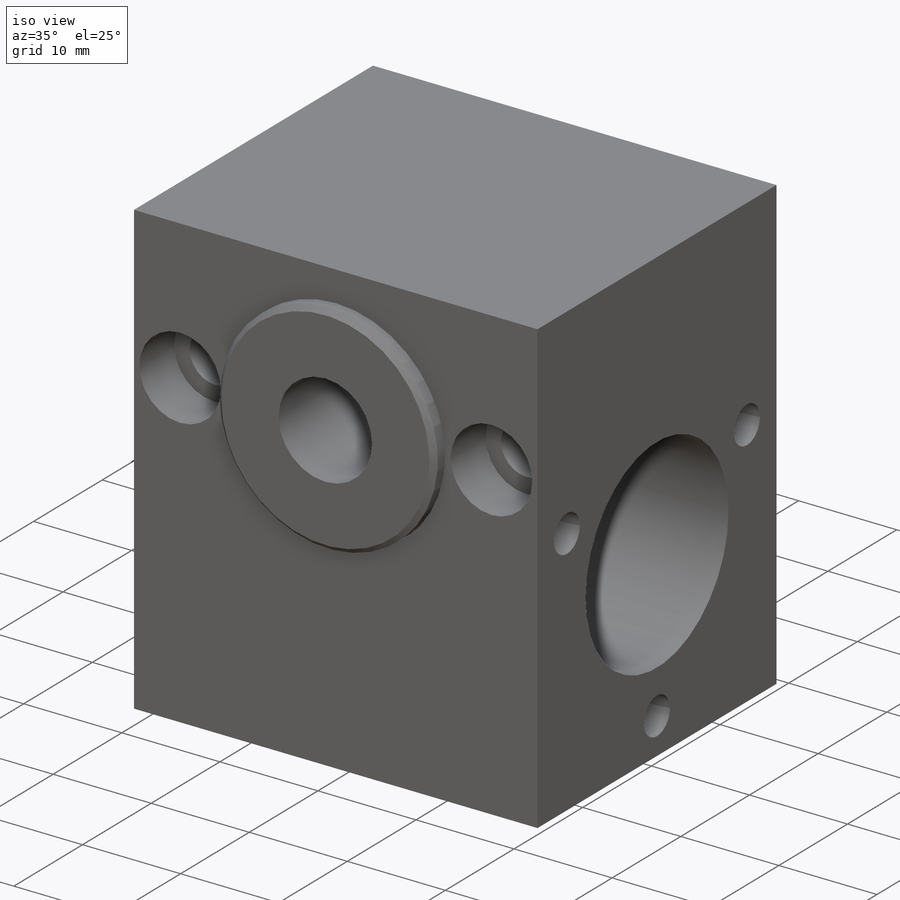
[diagram: iso view]
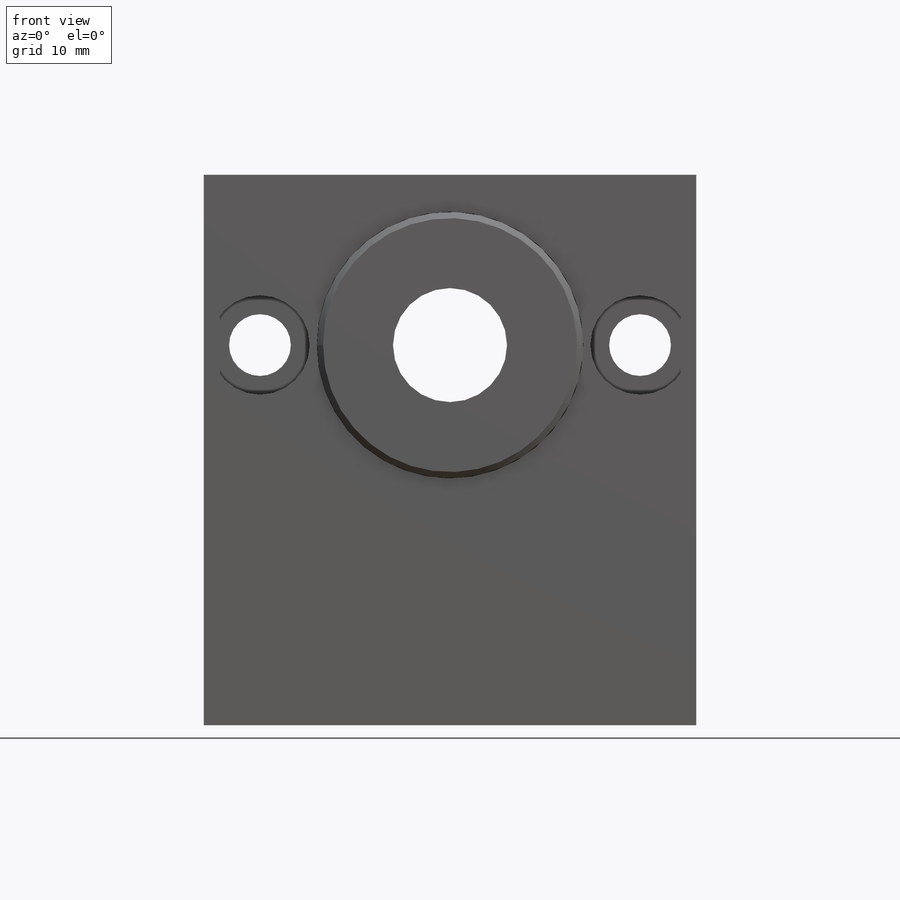
[diagram: front view]
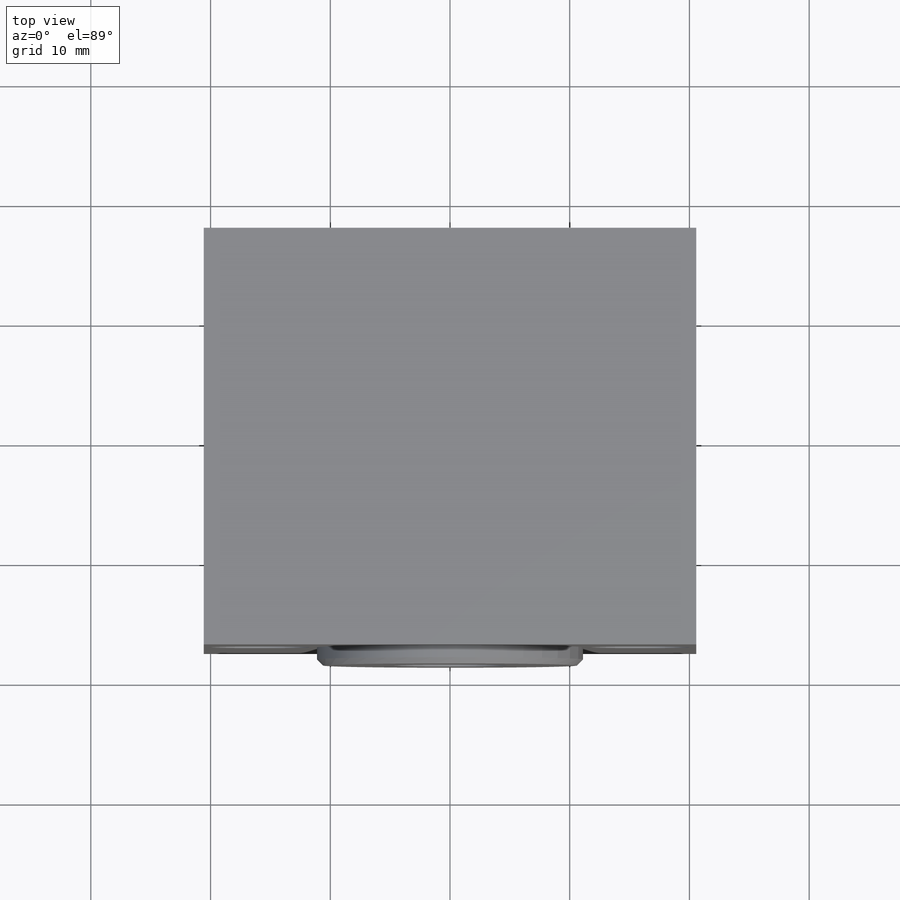
[diagram: top view]
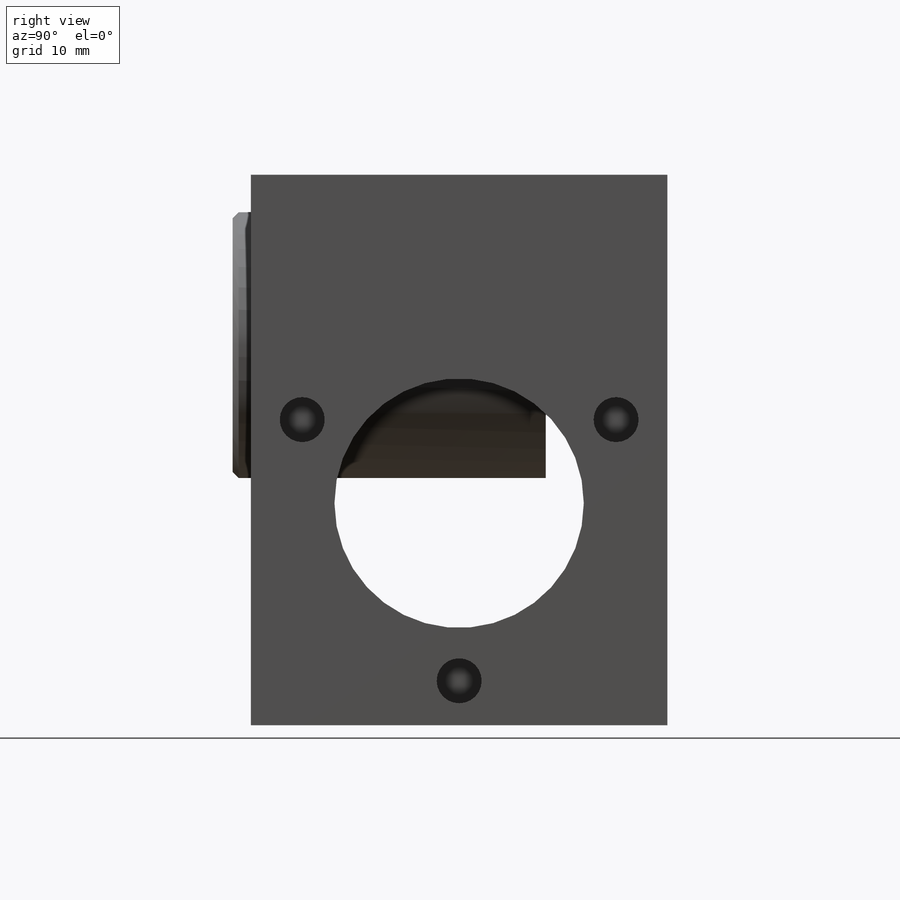
[diagram: right view]
SOLIDWORKS PART (.sldprt)
format: sldprt  version: not decoded by parser v0  size: 744,960 bytes
history: native  units: mm
features: plane x150, sketch x61, hole x5, cut_revolve x2, thread x2, pattern_linear x2, material x1, extrude x1, revolve x1 (+14 scaffold rows collapsed; 1 parser-record rows omitted)
feature tree (240):
  scaffold x14  (default folders/planes/origin — collapsed)
  material  "6061-T6 (SS)"
  sketch  "Sketch1"
  extrude  "Boss-Extrude1"  Depth=20.574mm
  plane  "Plane1"  Offset=15.875mm
  sketch  "Sketch2"
  cut_revolve  "Cut-Revolve1"  Angle=360deg
  plane  "Plane2"  Offset=15.875mm
  sketch  "Sketch3"
  cut_revolve  "Cut-Revolve2"  Angle=360deg
  plane  "Plane3"  Offset=12.7mm
  hole  "Hole1"  Diameter=3.96748mm Depth=11.5824mm
  sketch  "Sketch5"
  sketch  "Sketch4"  dims[Diameter=~3.96748mm Depth=11.5824mm C-Sink Diameter=4.826mm C-Sink Angle=90.0deg Drill Angle=120.0deg]
  thread  "Cosmetic Thread1"  Diameter=9.652mm  [1 undecoded]
  plane  "Plane4"  Offset=12.7mm
  hole  "Hole2"  Diameter=3.96748mm Depth=11.5824mm
  sketch  "Sketch7"
  sketch  "Sketch6"  dims[Diameter=~3.96748mm Depth=11.5824mm C-Sink Diameter=4.826mm C-Sink Angle=90.0deg Drill Angle=120.0deg]
  thread  "Cosmetic Thread2"  Diameter=9.652mm  [1 undecoded]
  hole  "Hole3"  Diameter=9.525mm Depth=34.798mm
  sketch  "Sketch9"
  sketch  "Sketch8"  dims[Diameter=9.525mm Depth=34.798mm C-Bore Diameter=22.2758mm C-Bore Depth=24.638mm]
  plane  "Plane5"  Offset=20.574mm
  plane  "Plane6"  Offset=20.574mm
  plane  "Plane7"  Offset=18.923mm
  plane  "Plane8"  Offset=44.323mm
  plane  "Plane9"  Offset=44.323mm
  plane  "Plane10"  Offset=17.399mm
  plane  "Plane11"  Offset=18.923mm
  plane  "Plane12"  Offset=17.399mm
  sketch  "Sketch10"
  revolve  "Revolve1"  Angle=360deg
  plane  "Plane13"  Offset=20.574mm
  hole  "Hole4"  Diameter=3.7592mm Depth=7.5184mm
  sketch  "Sketch12"
  sketch  "Sketch11"  dims[Diameter=3.7592mm Depth=7.5184mm]
  sketch  "Sketch13"
  pattern_linear  "LPattern2"  Count1=2 Count2=2 Spacing1=26.21701mm Spacing2=25.451526mm
  plane  "Plane14"  Offset=20.574mm
  hole  "Hole5"  Diameter=3.7592mm Depth=7.5184mm
  sketch  "Sketch15"
  sketch  "Sketch14"  dims[Diameter=3.7592mm Depth=7.5184mm]
  sketch  "Sketch16"
  pattern_linear  "LPattern4"  Count1=2 Count2=2 Spacing1=26.21701mm Spacing2=25.451526mm
  plane  "Plane15"  Offset=31.75mm
  parser-record x1  (decoder bookkeeping rows leaked as tree rows — omitted from the tree; the rows remain in map.json)
  plane  "a1 XY"
  plane  "a1 XZ"
  plane  "a1 YZ"
  sketch  "a1"
  plane  "a2 XY"
  plane  "a2 XZ"
  plane  "a2 YZ"
  sketch  "a2"
  plane  "ab XY"
  plane  "ab XZ"
  plane  "ab YZ"
  sketch  "ab"
  plane  "b1 XY"
  plane  "b1 XZ"
  plane  "b1 YZ"
  sketch  "b1"
  plane  "b2 XY"
  plane  "b2 XZ"
  plane  "b2 YZ"
  sketch  "b2"
  plane  "body a single XY"
  plane  "body a single XZ"
  plane  "body a single YZ"
  sketch  "body a single"
  plane  "body b single XY"
  plane  "body b single XZ"
  plane  "body b single YZ"
  sketch  "body b single"
  plane  "c1 XY"
  plane  "c1 XZ"
  plane  "c1 YZ"
  sketch  "c1"
  plane  "c2 XY"
  plane  "c2 XZ"
  plane  "c2 YZ"
  sketch  "c2"
  plane  "e1 XY"
  plane  "e1 XZ"
  plane  "e1 YZ"
  sketch  "e1"
  plane  "e2 XY"
  plane  "e2 XZ"
  plane  "e2 YZ"
  sketch  "e2"
  plane  "f1 XY"
  plane  "f1 XZ"
  plane  "f1 YZ"
  sketch  "f1"
  plane  "f2 XY"
  plane  "f2 XZ"
  plane  "f2 YZ"
  sketch  "f2"
  plane  "g1 XY"
  plane  "g1 XZ"
  plane  "g1 YZ"
  sketch  "g1"
  plane  "g1_1 XY"
  plane  "g1_1 XZ"
  plane  "g1_1 YZ"
  sketch  "g1_1"
  plane  "g1_2 XY"
  plane  "g1_2 XZ"
  plane  "g1_2 YZ"
  sketch  "g1_2"
  plane  "g2 XY"
  plane  "g2 XZ"
  plane  "g2 YZ"
  sketch  "g2"
  plane  "h1 XY"
  plane  "h1 XZ"
  plane  "h1 YZ"
  sketch  "h1"
  plane  "h2 XY"
  plane  "h2 XZ"
  plane  "h2 YZ"
  sketch  "h2"
  plane  "l_ab XY"
  plane  "l_ab XZ"
  plane  "l_ab YZ"
  sketch  "l_ab"
  plane  "l_cd XY"
  plane  "l_cd XZ"
  plane  "l_cd YZ"
  sketch  "l_cd"
  plane  "m1 XY"
  plane  "m1 XZ"
  plane  "m1 YZ"
  sketch  "m1"
  plane  "m2 XY"
  plane  "m2 XZ"
  plane  "m2 YZ"
  sketch  "m2"
  plane  "n1 XY"
  plane  "n1 XZ"
  plane  "n1 YZ"
  sketch  "n1"
  plane  "n2 XY"
  plane  "n2 XZ"
  plane  "n2 YZ"
  sketch  "n2"
  plane  "o1 XY"
  plane  "o1 XZ"
  plane  "o1 YZ"
  sketch  "o1"
  plane  "o2 XY"
  plane  "o2 XZ"
  plane  "o2 YZ"
  sketch  "o2"
  plane  "p1 XY"
  plane  "p1 XZ"
  plane  "p1 YZ"
  sketch  "p1"
  plane  "p2 XY"
  plane  "p2 XZ"
  plane  "p2 YZ"
  sketch  "p2"
  plane  "piston single XY"
  plane  "piston single XZ"
  plane  "piston single YZ"
  sketch  "piston single"
  plane  "q1 XY"
  plane  "q1 XZ"
  plane  "q1 YZ"
  sketch  "q1"
  plane  "q2 XY"
  plane  "q2 XZ"
  plane  "q2 YZ"
  sketch  "q2"
  plane  "s1 XY"
  plane  "s1 XZ"
  plane  "s1 YZ"
  sketch  "s1"
  plane  "s2 XY"
  plane  "s2 XZ"
  plane  "s2 YZ"
  sketch  "s2"
  plane  "t1 XY"
  plane  "t1 XZ"
  plane  "t1 YZ"
  sketch  "t1"
  plane  "t2 XY"
  plane  "t2 XZ"
  plane  "t2 YZ"
  sketch  "t2"
  plane  "to bearing XY"
  plane  "to bearing XZ"
  plane  "to bearing YZ"
  sketch  "to bearing"
  plane  "to bearing1 XY"
  plane  "to bearing1 XZ"
  plane  "to bearing1 YZ"
  sketch  "to bearing1"
  plane  "to cover plate XY"
  plane  "to cover plate XZ"
  plane  "to cover plate YZ"
  sketch  "to cover plate"
  plane  "to shaft XY"
  plane  "to shaft XZ"
  plane  "to shaft YZ"
  sketch  "to shaft"
  plane  "to shaft E XY"
  plane  "to shaft E XZ"
  plane  "to shaft E YZ"
  sketch  "to shaft E"
  plane  "w1 XY"
  plane  "w1 XZ"
  plane  "w1 YZ"
  sketch  "w1"
  plane  "w2 XY"
  plane  "w2 XZ"
  plane  "w2 YZ"
  sketch  "w2"
  plane  "x1 XY"
  plane  "x1 XZ"
  plane  "x1 YZ"
  sketch  "x1"
  plane  "x2 XY"
  plane  "x2 XZ"
  plane  "x2 YZ"
  sketch  "x2"
decode coverage: 18 of 74 modeling features carry decoded parameters
note: ~ marks probable driven/reference dimensions
note: 2 parameter values undecoded
summary: Diameter pulled from absorbed wizard sketch
note: suppression state not decoded; provenance and decode notes live in map.json
